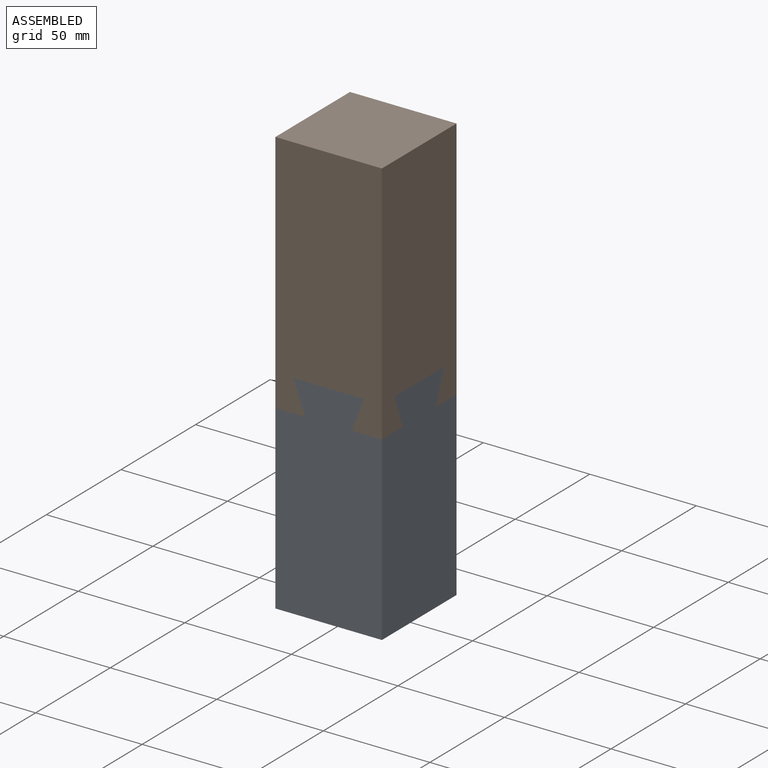
[diagram: assembled view]
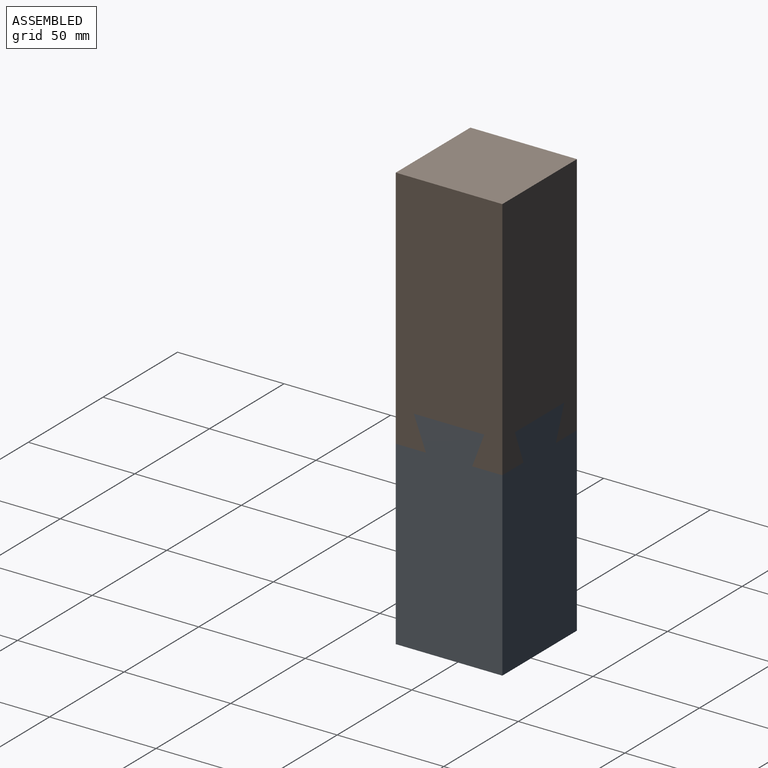
[diagram: assembled view, second angle]
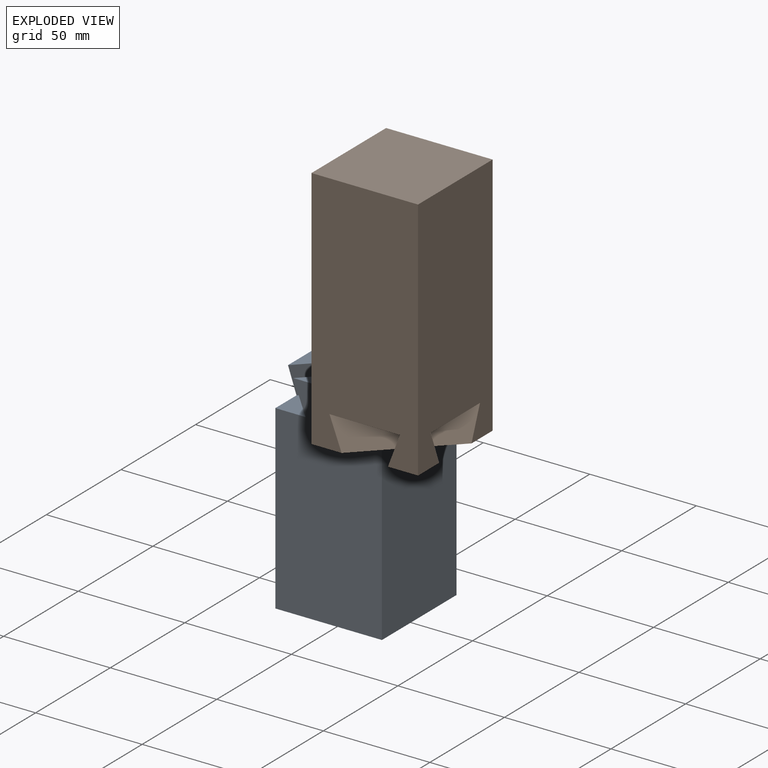
[diagram: exploded view]
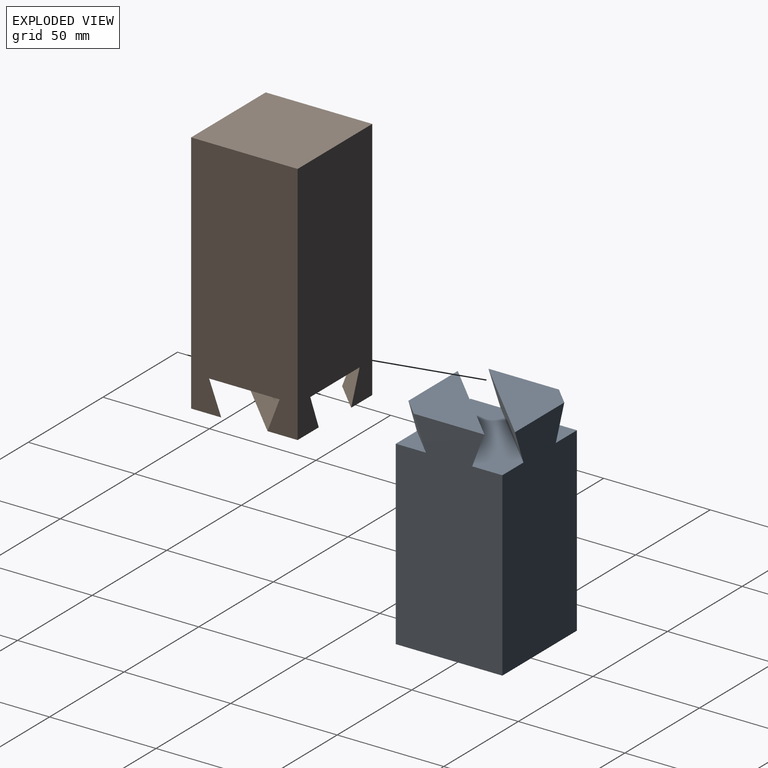
[diagram: exploded view, second angle]
ASSEMBLY  parts=2 mates=3
PART A: 14 faces, bbox 50x50x100 mm
  f0: plane 41.54x41.54mm, normal (0,0,1), area 827.1mm2, adj f2,f3,f8,f13
  f1: plane 41.54x41.54mm, normal (0,0,1), area 827.1mm2, adj f4,f5,f7,f11
  f2: plane 100x50mm, normal (0,-1,0), area 4661mm2, adj f0,f3,f5,f6,f8,f9,f12,f13
  f3: plane 100x50mm, normal (1,0,0), area 4661mm2, adj f0,f2,f4,f6,f8,f9,f12,f13
  f4: plane 100x50mm, normal (0,1,0), area 4661mm2, adj f1,f3,f5,f6,f7,f9,f10,f11
  f5: plane 100x50mm, normal (-1,0,0), area 4661mm2, adj f1,f2,f4,f6,f7,f9,f10,f11
  f6: plane 50x50mm, normal (0,0,-1), area 2500mm2, adj f2,f3,f4,f5
  f7: plane 41.54x41.54mm, normal (0.68,-0.68,-0.26), area 849.9mm2, adj f1,f4,f5,f9
  f8: plane 41.54x41.54mm, normal (-0.68,0.68,-0.26), area 849.9mm2, adj f0,f2,f3,f9
  f9: plane 50x50mm, normal (0,0,1), area 1214.2mm2, adj f2,f3,f4,f5,f7,f8
  f10: plane 14.14x14.14mm, normal (0,0,1), area 100mm2, adj f4,f5,f11
  f11: plane 15x14.14mm, normal (-0.68,0.68,-0.26), area 248.2mm2, adj f1,f4,f5,f10
  f12: plane 14.14x14.14mm, normal (0,0,1), area 100mm2, adj f2,f3,f13
  f13: plane 15x14.14mm, normal (0.68,-0.68,-0.26), area 248.2mm2, adj f0,f2,f3,f12
PART B: 14 faces, bbox 50x50x115 mm
  f0: plane 15x14.14mm, normal (0.68,-0.68,0.26), area 248.2mm2, adj f6,f10,f11,f13
  f1: plane 15x14.14mm, normal (-0.68,0.68,0.26), area 248.2mm2, adj f2,f7,f8,f9
  f2: plane 14.14x14.14mm, normal (0,0,-1), area 100mm2, adj f1,f8,f9
  f3: plane 41.54x41.54mm, normal (-0.68,0.68,0.26), area 849.9mm2, adj f4,f6,f10,f11
  f4: plane 50x50mm, normal (0,0,-1), area 1214.2mm2, adj f3,f5,f8,f9,f10,f11
  f5: plane 41.54x41.54mm, normal (0.68,-0.68,0.26), area 849.9mm2, adj f4,f7,f8,f9
  f6: plane 41.54x41.54mm, normal (0,0,-1), area 827.1mm2, adj f0,f3,f10,f11
  f7: plane 41.54x41.54mm, normal (0,0,-1), area 827.1mm2, adj f1,f5,f8,f9
  f8: plane 115x50mm, normal (0,-1,0), area 5339mm2, adj f1,f2,f4,f5,f7,f9,f11,f12
  f9: plane 115x50mm, normal (1,0,0), area 5339mm2, adj f1,f2,f4,f5,f7,f8,f10,f12
  f10: plane 115x50mm, normal (0,1,0), area 5339mm2, adj f0,f3,f4,f6,f9,f11,f12,f13
  f11: plane 115x50mm, normal (-1,0,0), area 5339mm2, adj f0,f3,f4,f6,f8,f10,f12,f13
  f12: plane 50x50mm, normal (0,0,1), area 2500mm2, adj f8,f9,f10,f11
  f13: plane 14.14x14.14mm, normal (0,0,-1), area 100mm2, adj f0,f10,f11
PLACE A at identity fixed
PLACE B t=(0,0,100)mm
MATE planar A.f8 <-> B.f5  axis (-0.68,0.68,-0.26) through (-13.7,-25,92.5)mm
MATE planar B.f8 <-> A.f2  axis (0,-1,0) through (0,-25,146.31)mm
MATE planar B.f4 <-> A.f9  axis (0,0,-1) through (0,0,85)mm
